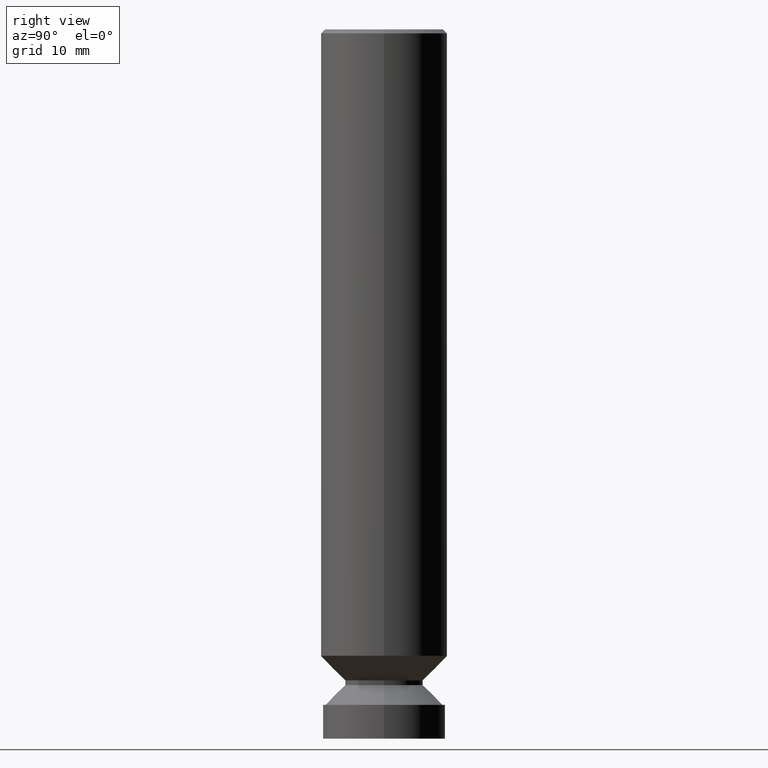
[diagram: clean part render]
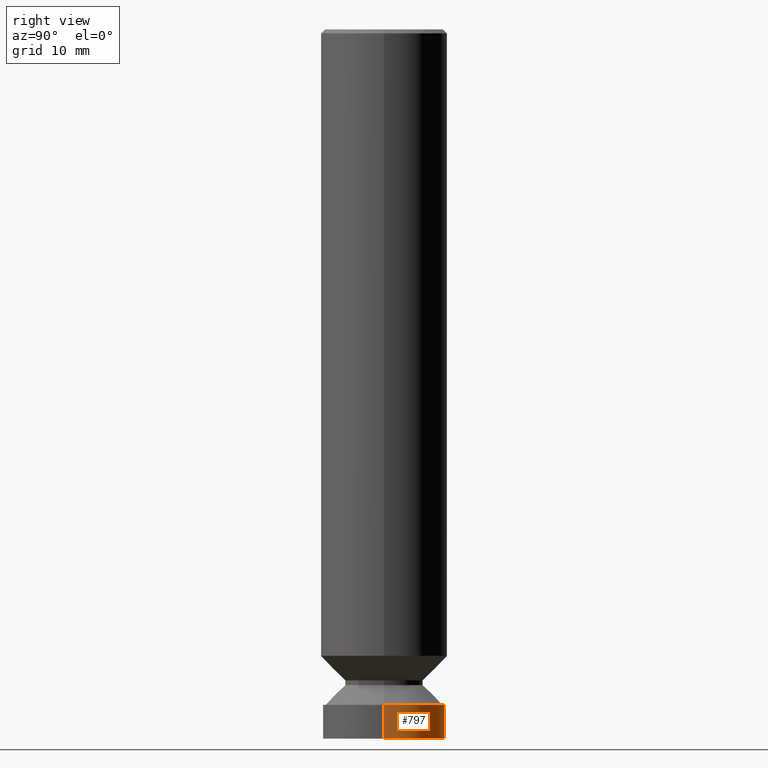
[diagram: same view with one face highlighted and labeled with its STEP entity id]
A machine part, right view. The second image highlights one B-rep face of the part: STEP entity #797.
In plain terms, the highlighted cylindrical surface (partial cylindrical patch) has radius 7.6835 mm, axis along (-0, 0, 1).
Its self-contained STEP definition (entity closure, byte-faithful):
#1 = LINE ( 'NONE', #268, #607 ) ;
#44 = CARTESIAN_POINT ( 'NONE',  ( 8.150747531015059748E-29, -1.163710730236420348E-14, -3.332999999999999741 ) ) ;
#52 = DIRECTION ( 'NONE',  ( -2.445468806185136597E-29, 3.491481338843145583E-15, 1.000000000000000000 ) ) ;
#59 = VERTEX_POINT ( 'NONE', #126 ) ;
#107 = CIRCLE ( 'NONE', #363, 0.3025000000000004352 ) ;
#124 = VERTEX_POINT ( 'NONE', #195 ) ;
#126 = CARTESIAN_POINT ( 'NONE',  ( -0.3024999999999999911, -9.779254218483268704E-15, -3.332999999999999741 ) ) ;
#136 = CARTESIAN_POINT ( 'NONE',  ( 0.000000000000000000, 0.000000000000000000, 0.000000000000000000 ) ) ;
#156 = VECTOR ( 'NONE', #694, 39.37007874015748143 ) ;
#184 = AXIS2_PLACEMENT_3D ( 'NONE', #44, #559, #799 ) ;
#195 = CARTESIAN_POINT ( 'NONE',  ( 0.3025000000000004352, -1.433253089595104128E-14, -3.499999999999980016 ) ) ;
#211 = VERTEX_POINT ( 'NONE', #615 ) ;
#267 = EDGE_LOOP ( 'NONE', ( #764, #473, #699, #664 ) ) ;
#268 = CARTESIAN_POINT ( 'NONE',  ( -0.3025000000000002132, 2.149391775674304577E-15, -1.487977864802109852E-29 ) ) ;
#273 = EDGE_CURVE ( 'NONE', #124, #695, #358, .T. ) ;
#279 = AXIS2_PLACEMENT_3D ( 'NONE', #136, #390, #598 ) ;
#289 = EDGE_CURVE ( 'NONE', #124, #211, #107, .T. ) ;
#293 = CARTESIAN_POINT ( 'NONE',  ( 8.559140821647929884E-29, -1.222018468595094150E-14, -3.499999999999980016 ) ) ;
#319 = CIRCLE ( 'NONE', #184, 0.3024999999999999911 ) ;
#330 = EDGE_CURVE ( 'NONE', #695, #59, #319, .T. ) ;
#358 = LINE ( 'NONE', #371, #156 ) ;
#363 = AXIS2_PLACEMENT_3D ( 'NONE', #293, #52, #810 ) ;
#371 = CARTESIAN_POINT ( 'NONE',  ( 0.3025000000000002132, -2.112346210000097021E-15, 1.475043474678271390E-29 ) ) ;
#390 = DIRECTION ( 'NONE',  ( -2.445468806185136597E-29, 3.491481338843145583E-15, 1.000000000000000000 ) ) ;
#442 = DIRECTION ( 'NONE',  ( -2.445468806185136877E-29, 3.491481338843145188E-15, 1.000000000000000000 ) ) ;
#473 = ORIENTED_EDGE ( 'NONE', *, *, #730, .T. ) ;
#559 = DIRECTION ( 'NONE',  ( -2.445468806185136597E-29, 3.491481338843145583E-15, 1.000000000000000000 ) ) ;
#585 = FACE_OUTER_BOUND ( 'NONE', #267, .T. ) ;
#598 = DIRECTION ( 'NONE',  ( 1.000000000000000000, -6.982962677686265922E-15, 4.876176775795935232E-29 ) ) ;
#607 = VECTOR ( 'NONE', #442, 39.37007874015748143 ) ;
#615 = CARTESIAN_POINT ( 'NONE',  ( -0.3025000000000004352, -9.779254218483265549E-15, -3.499999999999980016 ) ) ;
#664 = ORIENTED_EDGE ( 'NONE', *, *, #273, .F. ) ;
#694 = DIRECTION ( 'NONE',  ( -2.445468806185136877E-29, 3.491481338843145188E-15, 1.000000000000000000 ) ) ;
#695 = VERTEX_POINT ( 'NONE', #811 ) ;
#699 = ORIENTED_EDGE ( 'NONE', *, *, #330, .F. ) ;
#730 = EDGE_CURVE ( 'NONE', #211, #59, #1, .T. ) ;
#764 = ORIENTED_EDGE ( 'NONE', *, *, #289, .T. ) ;
#777 = CYLINDRICAL_SURFACE ( 'NONE', #279, 0.3025000000000002132 ) ;
#797 = ADVANCED_FACE ( 'NONE', ( #585 ), #777, .T. ) ;
#799 = DIRECTION ( 'NONE',  ( 1.000000000000000000, -6.982962677686267499E-15, 0.000000000000000000 ) ) ;
#810 = DIRECTION ( 'NONE',  ( 1.000000000000000000, -6.982962677686269866E-15, 0.000000000000000000 ) ) ;
#811 = CARTESIAN_POINT ( 'NONE',  ( 0.3024999999999999911, -1.374945351236429853E-14, -3.332999999999999741 ) ) ;